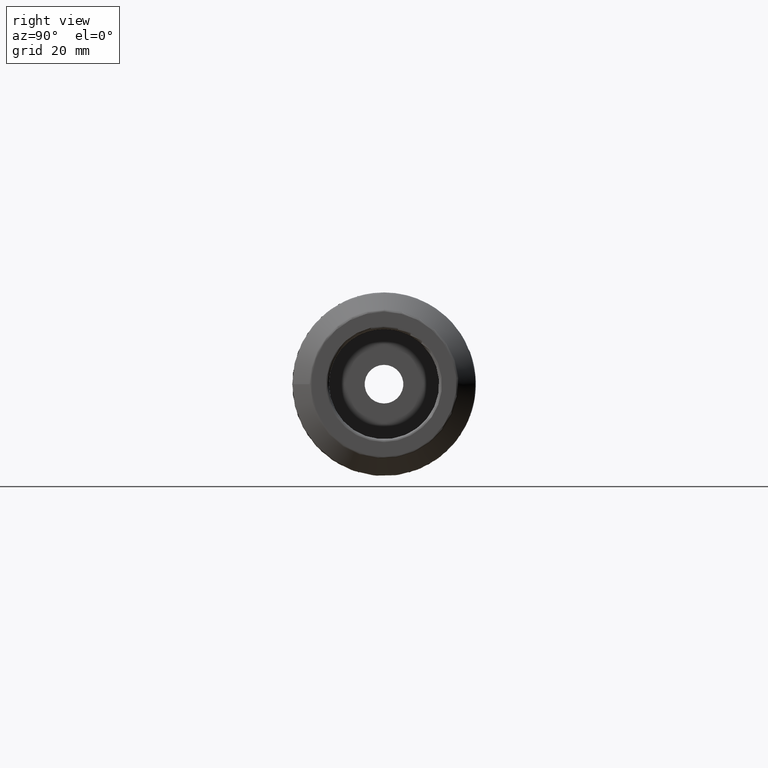
[diagram: clean part render]
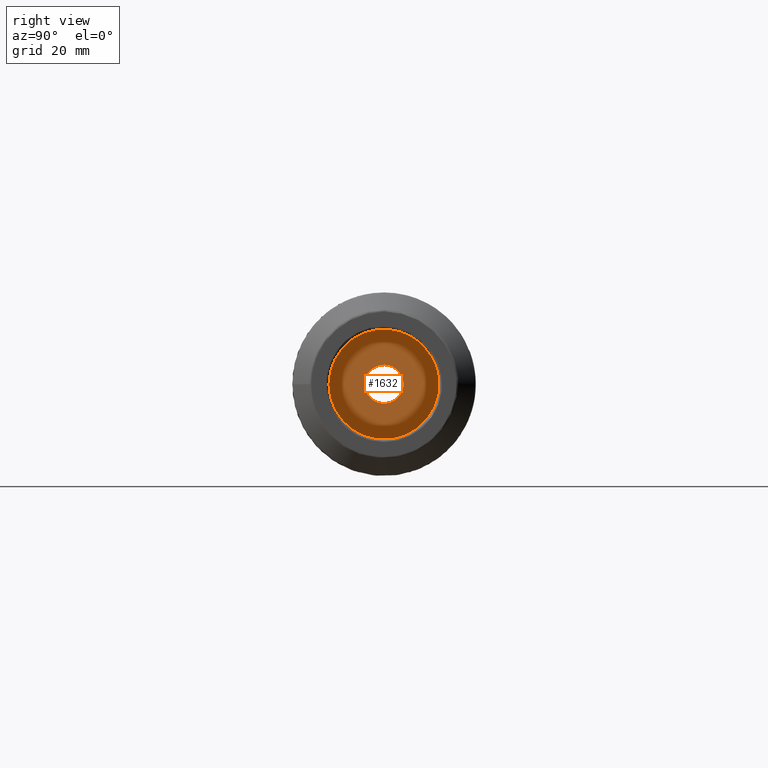
[diagram: same view with one face highlighted and labeled with its STEP entity id]
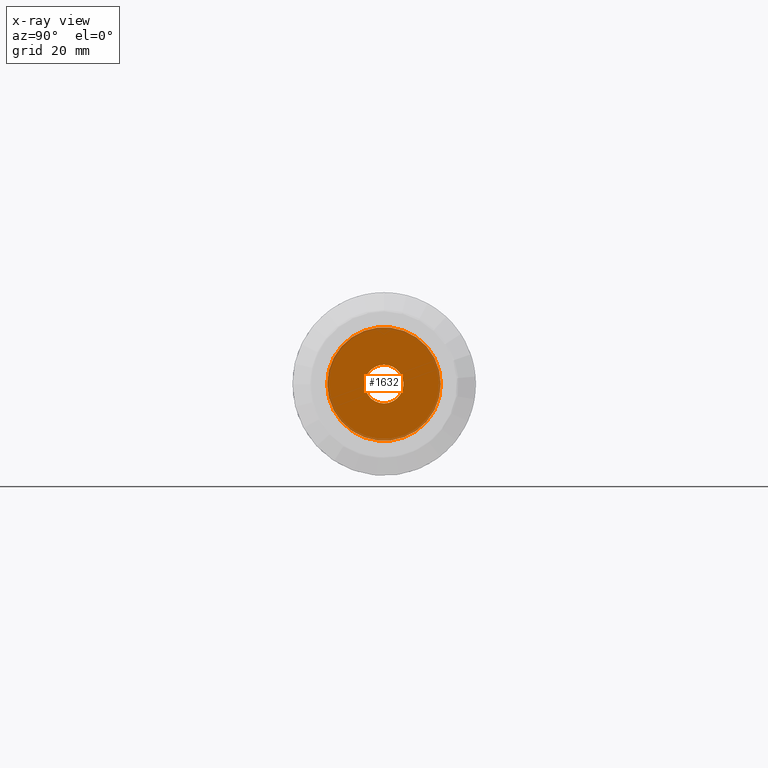
[diagram: x-ray of the same camera — body ghosted, the highlighted face saturated]
A machine part, right view. The second image highlights one B-rep face of the part: STEP entity #1632.
The next image is the same camera in x-ray: the body ghosted, the highlighted face saturated — about 7% of this face is hidden behind the body in this view.
In plain terms, the highlighted planar face has unit normal (1, 0, 0).
Its self-contained STEP definition (entity closure, byte-faithful):
#57=FACE_BOUND('',#266,.T.);
#70=PLANE('',#1777);
#165=FACE_OUTER_BOUND('',#265,.T.);
#265=EDGE_LOOP('',(#1197));
#266=EDGE_LOOP('',(#1198));
#420=CIRCLE('',#1771,6.6929);
#422=CIRCLE('',#1776,19.65);
#707=VERTEX_POINT('',#2728);
#713=VERTEX_POINT('',#2813);
#892=EDGE_CURVE('',#707,#707,#420,.T.);
#900=EDGE_CURVE('',#713,#713,#422,.T.);
#1197=ORIENTED_EDGE('',*,*,#900,.T.);
#1198=ORIENTED_EDGE('',*,*,#892,.T.);
#1632=ADVANCED_FACE('',(#165,#57),#70,.T.);
#1771=AXIS2_PLACEMENT_3D('',#2730,#2030,#2031);
#1776=AXIS2_PLACEMENT_3D('',#2815,#2042,#2043);
#1777=AXIS2_PLACEMENT_3D('',#2816,#2044,#2045);
#2030=DIRECTION('center_axis',(-1.,0.,0.));
#2031=DIRECTION('ref_axis',(0.,0.,1.));
#2042=DIRECTION('center_axis',(1.,0.,0.));
#2043=DIRECTION('ref_axis',(0.,0.,-1.));
#2044=DIRECTION('center_axis',(1.,0.,0.));
#2045=DIRECTION('ref_axis',(0.,0.,-1.));
#2728=CARTESIAN_POINT('',(67.4,-8.19643856201332E-16,-6.6929));
#2730=CARTESIAN_POINT('Origin',(67.4,0.,0.));
#2813=CARTESIAN_POINT('',(67.4,-19.65,-2.40643096032455E-15));
#2815=CARTESIAN_POINT('Origin',(67.4,0.,0.));
#2816=CARTESIAN_POINT('Origin',(67.4,-7.7715611723761E-15,0.));